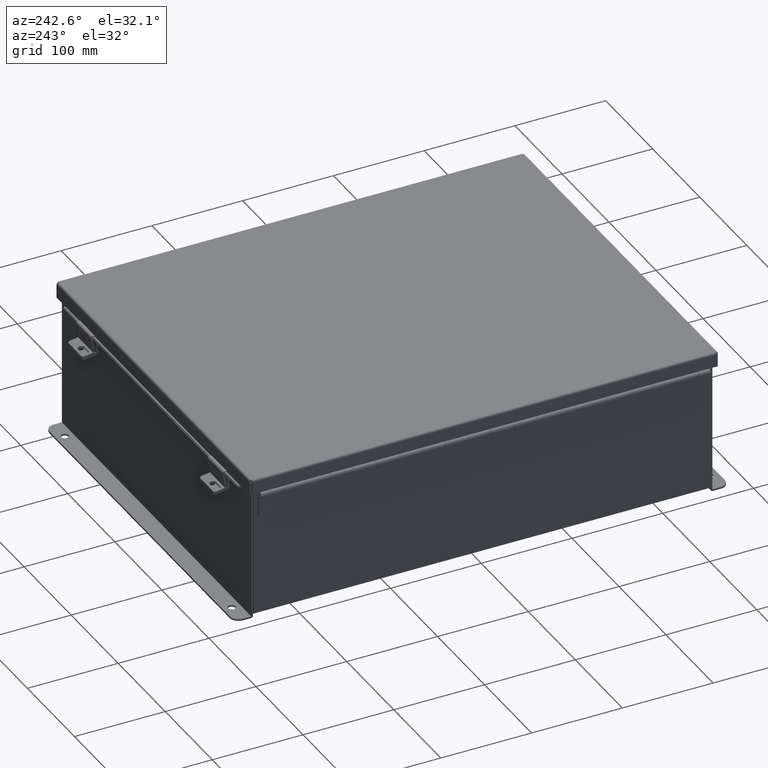
[diagram: clean part render]
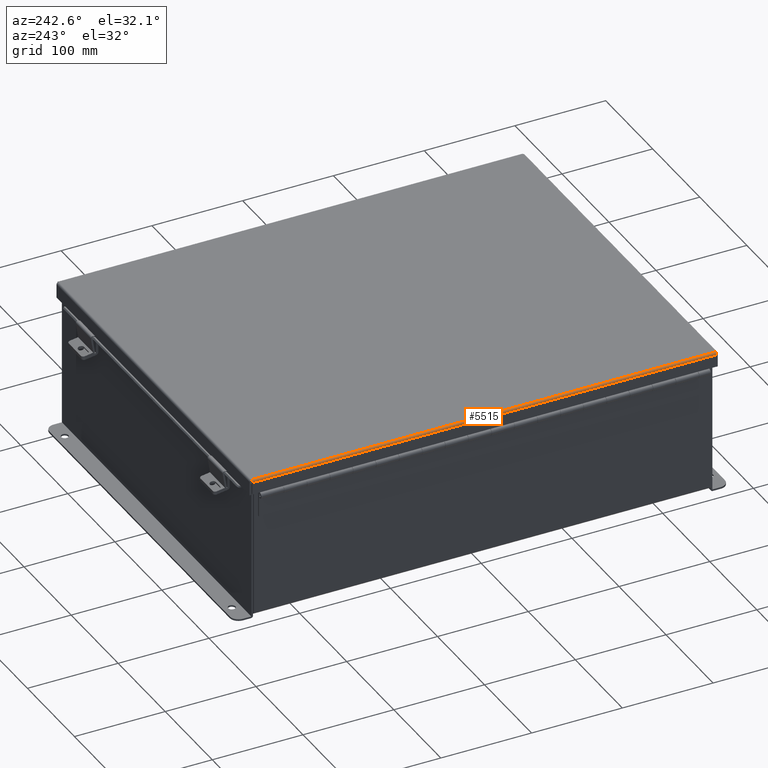
[diagram: same view with one face highlighted and labeled with its STEP entity id]
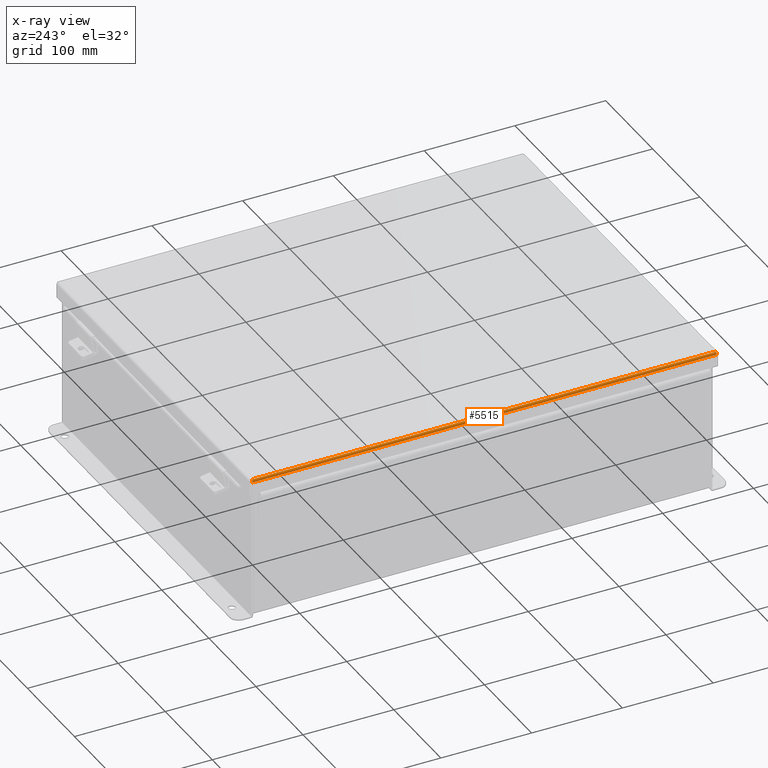
[diagram: x-ray of the same camera — body ghosted, the highlighted face saturated]
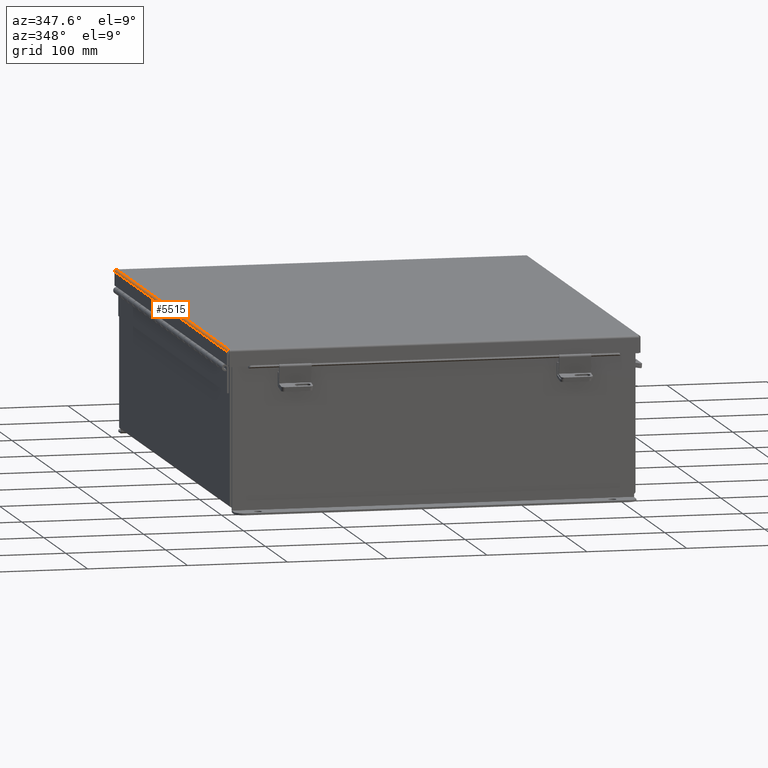
[diagram: same view with one face highlighted and labeled with its STEP entity id]
A machine part, auxiliary view. The second image highlights one B-rep face of the part: STEP entity #5515.
The next image is the same camera in x-ray: the body ghosted, the highlighted face saturated — about 0% of this face is hidden behind the body in this view.
A second angle (auxiliary view) of the same face is appended — the face is thin or edge-on in the first view.
In plain terms, the highlighted cylindrical surface (edge-blend (fillet) strip) has radius 2.2276 mm, axis along (0, 1, 0).
Its self-contained STEP definition (entity closure, byte-faithful):
#336 = CARTESIAN_POINT ( 'NONE',  ( 8.145181066258668800, 10.07250262145873700, -0.03116738457852801000 ) ) ;
#842 = VECTOR ( 'NONE', #16515, 39.37007874015748100 ) ;
#873 = CARTESIAN_POINT ( 'NONE',  ( 8.153967403743811500, 10.07349077682343000, -0.009955289458309070400 ) ) ;
#958 = ORIENTED_EDGE ( 'NONE', *, *, #1378, .F. ) ;
#960 = CARTESIAN_POINT ( 'NONE',  ( 8.112717384578530800, 10.07052631072936000, -0.06363106625866843400 ) ) ;
#1378 = EDGE_CURVE ( 'NONE', #10217, #16208, #5460, .T. ) ;
#1977 = CARTESIAN_POINT ( 'NONE',  ( 8.068550000000000100, 10.07447893218811600, -0.07470000000000015500 ) ) ;
#2087 = DIRECTION ( 'NONE',  ( 1.000000000000000000, 0.0000000000000000000, -3.966747639032868000E-015 ) ) ;
#2876 = CARTESIAN_POINT ( 'NONE',  ( 8.068550000000000100, -10.06855000000001600, -0.07470000000000015500 ) ) ;
#2984 = CARTESIAN_POINT ( 'NONE',  ( 8.091505289458313000, -10.06953815536470700, -0.07241740374381128200 ) ) ;
#3194 = CARTESIAN_POINT ( 'NONE',  ( 8.156250000000001800, 10.07447893218811600, 0.01300000000000010700 ) ) ;
#4622 = ORIENTED_EDGE ( 'NONE', *, *, #10919, .T. ) ;
#4722 = CARTESIAN_POINT ( 'NONE',  ( 8.122445747341803500, -10.07102038841174100, -0.05713078207832046600 ) ) ;
#5188 = VERTEX_POINT ( 'NONE', #21215 ) ;
#5262 = FACE_OUTER_BOUND ( 'NONE', #7397, .T. ) ;
#5460 = LINE ( 'NONE', #1977, #842 ) ;
#5515 = ADVANCED_FACE ( 'NONE', ( #5262 ), #9275, .T. ) ;
#5662 = B_SPLINE_CURVE_WITH_KNOTS ( 'NONE', 3,
 ( #21988, #13271, #2984, #15044, #4722, #16793, #6473, #18537, #8170, #20323 ),
 .UNSPECIFIED., .F., .F.,
 ( 4, 2, 2, 2, 4 ),
 ( 0.0000000000000000000, 0.2500000000000000000, 0.5000000000000000000, 0.7500000000000000000, 1.000000000000000000 ),
 .UNSPECIFIED. ) ;
#6473 = CARTESIAN_POINT ( 'NONE',  ( 8.145181066258670600, -10.07250262145877100, -0.03116738457852802300 ) ) ;
#6502 = CARTESIAN_POINT ( 'NONE',  ( 8.068550000000000100, 10.06854999999998100, -0.07470000000000015500 ) ) ;
#6556 = CARTESIAN_POINT ( 'NONE',  ( 8.080029903154995800, 10.06904407768232600, -0.07469999999999998900 ) ) ;
#7338 = LINE ( 'NONE', #15513, #15945 ) ;
#7372 = EDGE_CURVE ( 'NONE', #9616, #10217, #16468, .T. ) ;
#7397 = EDGE_LOOP ( 'NONE', ( #958, #9941, #4622, #16266 ) ) ;
#8170 = CARTESIAN_POINT ( 'NONE',  ( 8.156250000000001800, -10.07398485450580600, 0.001520096845007072400 ) ) ;
#9275 = CYLINDRICAL_SURFACE ( 'NONE', #17803, 0.08770000000000026400 ) ;
#9616 = VERTEX_POINT ( 'NONE', #3194 ) ;
#9941 = ORIENTED_EDGE ( 'NONE', *, *, #7372, .F. ) ;
#10217 = VERTEX_POINT ( 'NONE', #6502 ) ;
#10714 = DIRECTION ( 'NONE',  ( 2.258600338820354400E-033, 1.000000000000000000, 0.0000000000000000000 ) ) ;
#10919 = EDGE_CURVE ( 'NONE', #9616, #5188, #7338, .T. ) ;
#11535 = CARTESIAN_POINT ( 'NONE',  ( 8.068550000000000100, 10.06854999999998100, -0.07470000000000015500 ) ) ;
#13271 = CARTESIAN_POINT ( 'NONE',  ( 8.080029903154995800, -10.06904407768236400, -0.07469999999999998900 ) ) ;
#15044 = CARTESIAN_POINT ( 'NONE',  ( 8.112717384578527200, -10.07052631072939500, -0.06363106625866843400 ) ) ;
#15513 = CARTESIAN_POINT ( 'NONE',  ( 8.156250000000001800, -10.15625000000001600, 0.01299999999999901400 ) ) ;
#15574 = CARTESIAN_POINT ( 'NONE',  ( 8.068550000000001900, 10.07447893218811600, 0.01300000000000010700 ) ) ;
#15945 = VECTOR ( 'NONE', #19027, 39.37007874015748100 ) ;
#16208 = VERTEX_POINT ( 'NONE', #2876 ) ;
#16266 = ORIENTED_EDGE ( 'NONE', *, *, #21121, .F. ) ;
#16468 = B_SPLINE_CURVE_WITH_KNOTS ( 'NONE', 3,
 ( #20402, #18113, #873, #336, #18850, #18460, #960, #19777, #6556, #11535 ),
 .UNSPECIFIED., .F., .F.,
 ( 4, 2, 2, 2, 4 ),
 ( 0.0000000000000000000, 0.2500000000000000000, 0.5000000000000000000, 0.7500000000000000000, 1.000000000000000000 ),
 .UNSPECIFIED. ) ;
#16515 = DIRECTION ( 'NONE',  ( -2.258600338820354400E-033, -1.000000000000000000, -0.0000000000000000000 ) ) ;
#16793 = CARTESIAN_POINT ( 'NONE',  ( 8.138680782078321100, -10.07200854377643000, -0.04089574734180014700 ) ) ;
#17803 = AXIS2_PLACEMENT_3D ( 'NONE', #15574, #10714, #2087 ) ;
#18113 = CARTESIAN_POINT ( 'NONE',  ( 8.156250000000001800, 10.07398485450577200, 0.001520096845007071300 ) ) ;
#18460 = CARTESIAN_POINT ( 'NONE',  ( 8.122445747341801700, 10.07102038841170500, -0.05713078207832046600 ) ) ;
#18537 = CARTESIAN_POINT ( 'NONE',  ( 8.153967403743815000, -10.07349077682346200, -0.009955289458309073800 ) ) ;
#18850 = CARTESIAN_POINT ( 'NONE',  ( 8.138680782078322900, 10.07200854377639500, -0.04089574734180014700 ) ) ;
#19027 = DIRECTION ( 'NONE',  ( -2.258600338820354400E-033, -1.000000000000000000, -0.0000000000000000000 ) ) ;
#19777 = CARTESIAN_POINT ( 'NONE',  ( 8.091505289458313000, 10.06953815536467000, -0.07241740374381128200 ) ) ;
#20323 = CARTESIAN_POINT ( 'NONE',  ( 8.156250000000001800, -10.07447893218815200, 0.01299999999999901400 ) ) ;
#20402 = CARTESIAN_POINT ( 'NONE',  ( 8.156250000000001800, 10.07447893218811600, 0.01300000000000010700 ) ) ;
#21121 = EDGE_CURVE ( 'NONE', #16208, #5188, #5662, .T. ) ;
#21215 = CARTESIAN_POINT ( 'NONE',  ( 8.156250000000001800, -10.07447893218815200, 0.01299999999999901400 ) ) ;
#21988 = CARTESIAN_POINT ( 'NONE',  ( 8.068550000000000100, -10.06855000000001600, -0.07470000000000015500 ) ) ;